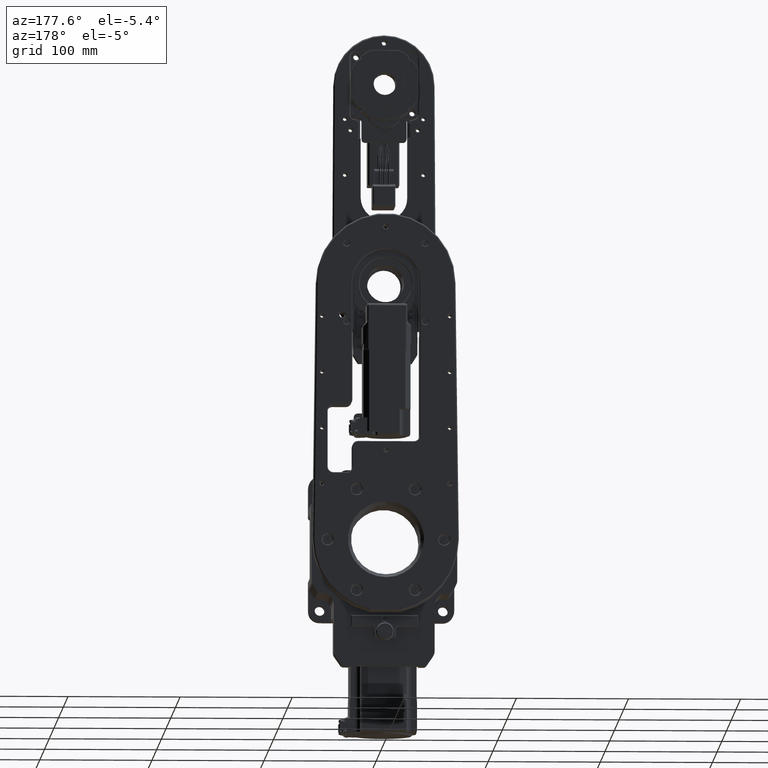
[diagram: clean part render]
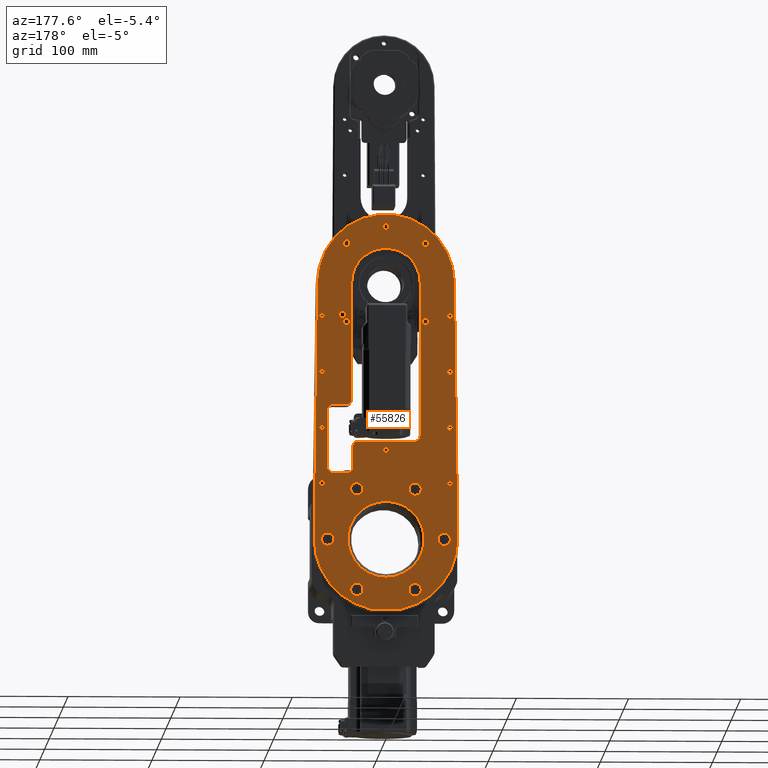
[diagram: same view with one face highlighted and labeled with its STEP entity id]
A machine part, auxiliary view. The second image highlights one B-rep face of the part: STEP entity #55826.
In plain terms, the highlighted planar face has unit normal (0, 1, -0).
Its self-contained STEP definition (entity closure, byte-faithful):
#12 = DIRECTION ( 'NONE',  ( -1.428298247106164424E-15, -1.000000000000000000, 1.323339650661262444E-15 ) ) ;
#39 = EDGE_CURVE ( 'NONE', #88887, #27666, #52071, .T. ) ;
#62 = ORIENTED_EDGE ( 'NONE', *, *, #49863, .T. ) ;
#98 = AXIS2_PLACEMENT_3D ( 'NONE', #82440, #25560, #9915 ) ;
#245 = CARTESIAN_POINT ( 'NONE',  ( 57.00000000000763833, 111.0000000000005116, 200.0000000000000568 ) ) ;
#573 = CARTESIAN_POINT ( 'NONE',  ( -34.99999999999236877, 111.0000000000006395, 198.0000000000001137 ) ) ;
#593 = CARTESIAN_POINT ( 'NONE',  ( 47.00000000000760991, 111.0000000000004121, 115.0000000000000426 ) ) ;
#665 = AXIS2_PLACEMENT_3D ( 'NONE', #64966, #64497, #93837 ) ;
#1059 = VERTEX_POINT ( 'NONE', #33516 ) ;
#1172 = DIRECTION ( 'NONE',  ( -1.428298247106164424E-15, -1.000000000000000000, 1.323339650661262444E-15 ) ) ;
#1428 = EDGE_CURVE ( 'NONE', #26626, #22716, #38652, .T. ) ;
#1591 = CIRCLE ( 'NONE', #37987, 2.150000000000040767 ) ;
#1637 = DIRECTION ( 'NONE',  ( 0.0000000000000000000, 0.0000000000000000000, 1.000000000000000000 ) ) ;
#1722 = CARTESIAN_POINT ( 'NONE',  ( 35.00000000000765965, 111.0000000000003553, 59.50000000000004974 ) ) ;
#1726 = CARTESIAN_POINT ( 'NONE',  ( -56.99999999999237588, 111.0000000000006111, 150.0000000000000568 ) ) ;
#2182 = CIRCLE ( 'NONE', #93028, 2.150000000000040767 ) ;
#2386 = AXIS2_PLACEMENT_3D ( 'NONE', #3815, #74479, #9051 ) ;
#2568 = CARTESIAN_POINT ( 'NONE',  ( -13.88344337690723762, 111.0000000000002700, -62.49999999999997158 ) ) ;
#3109 = EDGE_CURVE ( 'NONE', #32914, #31298, #16587, .T. ) ;
#3367 = EDGE_CURVE ( 'NONE', #22641, #29342, #63528, .T. ) ;
#3504 = FACE_BOUND ( 'NONE', #56203, .T. ) ;
#3815 = CARTESIAN_POINT ( 'NONE',  ( -56.99999999999239009, 111.0000000000006821, 200.0000000000000568 ) ) ;
#3828 = EDGE_LOOP ( 'NONE', ( #70593, #92008 ) ) ;
#4392 = CARTESIAN_POINT ( 'NONE',  ( -25.99999999999235456, 111.0000000000004405, 50.53332099679082745 ) ) ;
#4449 = FACE_BOUND ( 'NONE', #83873, .T. ) ;
#4570 = DIRECTION ( 'NONE',  ( -1.428298247106164424E-15, -1.000000000000000000, 1.323339650661262444E-15 ) ) ;
#4783 = VECTOR ( 'NONE', #46354, 1000.000000000000000 ) ;
#4889 = FACE_BOUND ( 'NONE', #12372, .T. ) ;
#4906 = CIRCLE ( 'NONE', #57894, 33.99999999999997868 ) ;
#5119 = AXIS2_PLACEMENT_3D ( 'NONE', #39706, #80992, #67240 ) ;
#5346 = CARTESIAN_POINT ( 'NONE',  ( 57.00000000000765255, 111.0000000000003268, 50.00000000000000711 ) ) ;
#5411 = EDGE_CURVE ( 'NONE', #34400, #75726, #9807, .T. ) ;
#5441 = CIRCLE ( 'NONE', #2386, 2.150000000000040767 ) ;
#5478 = DIRECTION ( 'NONE',  ( 0.0000000000000000000, 2.523234146875353335E-15, 1.000000000000000000 ) ) ;
#5652 = CIRCLE ( 'NONE', #55573, 60.99999999999994316 ) ;
#5842 = DIRECTION ( 'NONE',  ( 0.0000000000000000000, 2.523234146875353335E-15, 1.000000000000000000 ) ) ;
#6456 = DIRECTION ( 'NONE',  ( 0.0000000000000000000, 0.0000000000000000000, 1.000000000000000000 ) ) ;
#6732 = AXIS2_PLACEMENT_3D ( 'NONE', #9096, #10492, #31841 ) ;
#6809 = CARTESIAN_POINT ( 'NONE',  ( 26.00000000000766320, 111.0000000000003411, 39.53332099679081324 ) ) ;
#6973 = CARTESIAN_POINT ( 'NONE',  ( 26.00000000000766320, 111.0000000000003553, 45.03332099679081324 ) ) ;
#7085 = CIRCLE ( 'NONE', #85771, 5.500000000000005329 ) ;
#7091 = DIRECTION ( 'NONE',  ( -1.110223024625299768E-16, 0.0000000000000000000, 1.000000000000000000 ) ) ;
#7172 = CARTESIAN_POINT ( 'NONE',  ( 57.00000000000764544, 111.0000000000003695, 100.0000000000000284 ) ) ;
#7454 = AXIS2_PLACEMENT_3D ( 'NONE', #56701, #85609, #93164 ) ;
#7622 = CARTESIAN_POINT ( 'NONE',  ( 7.646781800377124168E-12, 111.0000000000003695, 33.99999999999997868 ) ) ;
#7650 = ORIENTED_EDGE ( 'NONE', *, *, #57062, .T. ) ;
#7682 = DIRECTION ( 'NONE',  ( -1.428298247106164424E-15, -1.000000000000000000, 1.323339650661262444E-15 ) ) ;
#8041 = LINE ( 'NONE', #36992, #46827 ) ;
#8397 = CARTESIAN_POINT ( 'NONE',  ( -61.00008505530207970, 111.0000000000007248, 229.9869576311562867 ) ) ;
#8878 = ORIENTED_EDGE ( 'NONE', *, *, #65735, .T. ) ;
#8902 = ORIENTED_EDGE ( 'NONE', *, *, #26357, .T. ) ;
#9051 = DIRECTION ( 'NONE',  ( 0.0000000000000000000, 0.0000000000000000000, 1.000000000000000000 ) ) ;
#9096 = CARTESIAN_POINT ( 'NONE',  ( 57.00000000000763833, 111.0000000000004405, 150.0000000000000568 ) ) ;
#9175 = ORIENTED_EDGE ( 'NONE', *, *, #48415, .T. ) ;
#9231 = CIRCLE ( 'NONE', #62197, 5.500000000000005329 ) ;
#9734 = EDGE_CURVE ( 'NONE', #74773, #59974, #28415, .T. ) ;
#9754 = CIRCLE ( 'NONE', #665, 2.500000000000002220 ) ;
#9807 = LINE ( 'NONE', #8397, #73255 ) ;
#9915 = DIRECTION ( 'NONE',  ( 7.771561172375951816E-16, 1.365028308965355206E-15, 1.000000000000000000 ) ) ;
#10030 = ORIENTED_EDGE ( 'NONE', *, *, #65077, .T. ) ;
#10492 = DIRECTION ( 'NONE',  ( -1.428298247106164424E-15, -1.000000000000000000, 1.323339650661262444E-15 ) ) ;
#10514 = DIRECTION ( 'NONE',  ( -1.428298247106164424E-15, -1.000000000000000000, 1.323339650661262444E-15 ) ) ;
#10521 = DIRECTION ( 'NONE',  ( 0.0000000000000000000, 2.523234146875353335E-15, 1.000000000000000000 ) ) ;
#10547 = EDGE_CURVE ( 'NONE', #29381, #52165, #84492, .T. ) ;
#10878 = VECTOR ( 'NONE', #61568, 1000.000000000000114 ) ;
#11095 = EDGE_CURVE ( 'NONE', #58073, #28155, #11907, .T. ) ;
#11100 = CARTESIAN_POINT ( 'NONE',  ( 52.50000000000761702, 111.0000000000003979, 115.0000000000000426 ) ) ;
#11105 = AXIS2_PLACEMENT_3D ( 'NONE', #24367, #74612, #45250 ) ;
#11263 = EDGE_LOOP ( 'NONE', ( #20481, #80806 ) ) ;
#11432 = EDGE_CURVE ( 'NONE', #52955, #59724, #40796, .T. ) ;
#11549 = AXIS2_PLACEMENT_3D ( 'NONE', #27004, #19879, #48806 ) ;
#11907 = CIRCLE ( 'NONE', #24014, 2.150000000000040767 ) ;
#11923 = CIRCLE ( 'NONE', #60337, 5.500000000000005329 ) ;
#12032 = AXIS2_PLACEMENT_3D ( 'NONE', #53104, #68746, #24665 ) ;
#12285 = VERTEX_POINT ( 'NONE', #573 ) ;
#12370 = CARTESIAN_POINT ( 'NONE',  ( -25.99999999999235456, 111.0000000000004121, 39.53332099679082745 ) ) ;
#12372 = EDGE_LOOP ( 'NONE', ( #90847, #70099 ) ) ;
#12489 = FACE_OUTER_BOUND ( 'NONE', #57164, .T. ) ;
#12502 = CARTESIAN_POINT ( 'NONE',  ( 7.650556558660849701E-12, 111.0000000000003411, -2.681236349580088183E-15 ) ) ;
#12660 = ORIENTED_EDGE ( 'NONE', *, *, #86713, .T. ) ;
#12683 = DIRECTION ( 'NONE',  ( -1.428298247106164424E-15, -1.000000000000000000, 1.323339650661262444E-15 ) ) ;
#13077 = CARTESIAN_POINT ( 'NONE',  ( 7.658495116061677490E-12, 111.0000000000002984, -33.99999999999998579 ) ) ;
#13210 = DIRECTION ( 'NONE',  ( 0.0000000000000000000, 0.0000000000000000000, 1.000000000000000000 ) ) ;
#13421 = CARTESIAN_POINT ( 'NONE',  ( -56.99999999999238298, 111.0000000000005400, 100.0000000000000284 ) ) ;
#13558 = EDGE_LOOP ( 'NONE', ( #21603, #34407 ) ) ;
#13592 = CARTESIAN_POINT ( 'NONE',  ( -34.99999999999236877, 111.0000000000006395, 195.0000000000001137 ) ) ;
#13747 = DIRECTION ( 'NONE',  ( -1.428298247106164424E-15, -1.000000000000000000, 1.323339650661262444E-15 ) ) ;
#13808 = VERTEX_POINT ( 'NONE', #44668 ) ;
#14006 = VERTEX_POINT ( 'NONE', #78104 ) ;
#14228 = DIRECTION ( 'NONE',  ( -1.428298247106164424E-15, -1.000000000000000000, 1.323339650661262444E-15 ) ) ;
#14605 = CARTESIAN_POINT ( 'NONE',  ( -34.99999999999236877, 111.0000000000006395, 195.0000000000001137 ) ) ;
#14837 = ORIENTED_EDGE ( 'NONE', *, *, #36545, .T. ) ;
#15262 = CARTESIAN_POINT ( 'NONE',  ( 57.00000000000764544, 111.0000000000003695, 97.84999999999999432 ) ) ;
#15760 = VERTEX_POINT ( 'NONE', #42058 ) ;
#15820 = CIRCLE ( 'NONE', #30986, 5.500000000000005329 ) ;
#16143 = CIRCLE ( 'NONE', #90256, 5.500000000000005329 ) ;
#16172 = ORIENTED_EDGE ( 'NONE', *, *, #57633, .T. ) ;
#16305 = EDGE_LOOP ( 'NONE', ( #16448, #83505 ) ) ;
#16314 = ORIENTED_EDGE ( 'NONE', *, *, #86107, .T. ) ;
#16448 = ORIENTED_EDGE ( 'NONE', *, *, #92050, .T. ) ;
#16587 = LINE ( 'NONE', #36546, #27145 ) ;
#16796 = VERTEX_POINT ( 'NONE', #72652 ) ;
#16963 = DIRECTION ( 'NONE',  ( -1.428298247106164424E-15, -1.000000000000000000, 1.323339650661262444E-15 ) ) ;
#17166 = ORIENTED_EDGE ( 'NONE', *, *, #51974, .T. ) ;
#17185 = EDGE_CURVE ( 'NONE', #27666, #88887, #9754, .T. ) ;
#17401 = DIRECTION ( 'NONE',  ( -1.428298247106164424E-15, -1.000000000000000000, 1.323339650661262444E-15 ) ) ;
#17480 = EDGE_LOOP ( 'NONE', ( #28353, #77357 ) ) ;
#17544 = VERTEX_POINT ( 'NONE', #84316 ) ;
#17657 = CARTESIAN_POINT ( 'NONE',  ( 7.620054031427286993E-12, 111.0000000000007105, 277.5000000000000568 ) ) ;
#17748 = FACE_BOUND ( 'NONE', #55821, .T. ) ;
#17780 = CARTESIAN_POINT ( 'NONE',  ( 7.621635248869364373E-12, 111.0000000000006821, 260.5000000000001137 ) ) ;
#17821 = EDGE_CURVE ( 'NONE', #23516, #74676, #19800, .T. ) ;
#17923 = CIRCLE ( 'NONE', #17987, 5.500000000000005329 ) ;
#17926 = DIRECTION ( 'NONE',  ( 0.0000000000000000000, 2.523234146875353335E-15, 1.000000000000000000 ) ) ;
#17987 = AXIS2_PLACEMENT_3D ( 'NONE', #21234, #50142, #55843 ) ;
#18037 = EDGE_CURVE ( 'NONE', #50960, #27706, #91273, .T. ) ;
#18039 = DIRECTION ( 'NONE',  ( -1.428298247106164424E-15, -1.000000000000000000, 1.323339650661262444E-15 ) ) ;
#18116 = LINE ( 'NONE', #40858, #48162 ) ;
#18159 = ORIENTED_EDGE ( 'NONE', *, *, #35670, .T. ) ;
#18292 = DIRECTION ( 'NONE',  ( -1.428298247106164424E-15, -1.000000000000000000, 1.323339650661262444E-15 ) ) ;
#18359 = ORIENTED_EDGE ( 'NONE', *, *, #81489, .T. ) ;
#18597 = CARTESIAN_POINT ( 'NONE',  ( 57.00000000000763833, 111.0000000000005116, 200.0000000000000568 ) ) ;
#18681 = FACE_BOUND ( 'NONE', #17480, .T. ) ;
#18705 = VERTEX_POINT ( 'NONE', #41213 ) ;
#18774 = AXIS2_PLACEMENT_3D ( 'NONE', #36760, #23479, #81276 ) ;
#18827 = DIRECTION ( 'NONE',  ( 2.331859275313049513E-16, -1.323339650661263035E-15, -1.000000000000000000 ) ) ;
#18855 = DIRECTION ( 'NONE',  ( -1.428298247106164424E-15, -1.000000000000000000, 1.323339650661262444E-15 ) ) ;
#19007 = EDGE_CURVE ( 'NONE', #38836, #13808, #30724, .T. ) ;
#19397 = EDGE_CURVE ( 'NONE', #28155, #58073, #76771, .T. ) ;
#19515 = CARTESIAN_POINT ( 'NONE',  ( -56.99999999999237588, 111.0000000000004832, 49.99999999999999289 ) ) ;
#19593 = FACE_BOUND ( 'NONE', #63687, .T. ) ;
#19800 = CIRCLE ( 'NONE', #72785, 3.000000000000002665 ) ;
#19802 = ORIENTED_EDGE ( 'NONE', *, *, #10547, .T. ) ;
#19879 = DIRECTION ( 'NONE',  ( 1.428298247106164424E-15, 1.000000000000000000, -1.323339650661262444E-15 ) ) ;
#19978 = DIRECTION ( 'NONE',  ( 4.625929269271517684E-18, 1.323339650661262444E-15, 1.000000000000000000 ) ) ;
#20151 = CARTESIAN_POINT ( 'NONE',  ( 60.99999965423374704, 111.0000000000005400, 229.9935050475663729 ) ) ;
#20237 = ORIENTED_EDGE ( 'NONE', *, *, #22576, .T. ) ;
#20452 = CARTESIAN_POINT ( 'NONE',  ( 35.00000000000765255, 111.0000000000005400, 195.0000000000000568 ) ) ;
#20481 = ORIENTED_EDGE ( 'NONE', *, *, #23004, .T. ) ;
#20658 = AXIS2_PLACEMENT_3D ( 'NONE', #20452, #78280, #43685 ) ;
#20761 = AXIS2_PLACEMENT_3D ( 'NONE', #86981, #1172, #1637 ) ;
#20841 = AXIS2_PLACEMENT_3D ( 'NONE', #35724, #78373, #5842 ) ;
#20953 = VERTEX_POINT ( 'NONE', #50336 ) ;
#21049 = CARTESIAN_POINT ( 'NONE',  ( -56.99999999999239009, 111.0000000000006821, 200.0000000000000568 ) ) ;
#21151 = EDGE_CURVE ( 'NONE', #75726, #36853, #5652, .T. ) ;
#21234 = CARTESIAN_POINT ( 'NONE',  ( 26.00000000000767386, 111.0000000000002416, -45.03332099679083456 ) ) ;
#21247 = DIRECTION ( 'NONE',  ( -1.428298247106164424E-15, -1.000000000000000000, 1.323339650661262444E-15 ) ) ;
#21315 = VECTOR ( 'NONE', #66630, 1000.000000000000000 ) ;
#21603 = ORIENTED_EDGE ( 'NONE', *, *, #53842, .T. ) ;
#21667 = ORIENTED_EDGE ( 'NONE', *, *, #33908, .T. ) ;
#21875 = DIRECTION ( 'NONE',  ( 0.0000000000000000000, 0.0000000000000000000, 1.000000000000000000 ) ) ;
#21902 = ORIENTED_EDGE ( 'NONE', *, *, #3109, .T. ) ;
#21995 = VERTEX_POINT ( 'NONE', #7622 ) ;
#22576 = EDGE_CURVE ( 'NONE', #29342, #22641, #33172, .T. ) ;
#22641 = VERTEX_POINT ( 'NONE', #24544 ) ;
#22670 = AXIS2_PLACEMENT_3D ( 'NONE', #52450, #87051, #74269 ) ;
#22716 = VERTEX_POINT ( 'NONE', #70944 ) ;
#23004 = EDGE_CURVE ( 'NONE', #21995, #49287, #4906, .T. ) ;
#23479 = DIRECTION ( 'NONE',  ( -1.428298247106164424E-15, -1.000000000000000000, 1.323339650661262444E-15 ) ) ;
#23516 = VERTEX_POINT ( 'NONE', #49748 ) ;
#23773 = CARTESIAN_POINT ( 'NONE',  ( 7.625021429094471100E-12, 111.0000000000006395, 230.0000000000000853 ) ) ;
#23938 = FACE_BOUND ( 'NONE', #3828, .T. ) ;
#24014 = AXIS2_PLACEMENT_3D ( 'NONE', #18597, #24311, #40402 ) ;
#24289 = EDGE_LOOP ( 'NONE', ( #80856, #56564 ) ) ;
#24311 = DIRECTION ( 'NONE',  ( -1.428298247106164424E-15, -1.000000000000000000, 1.323339650661262444E-15 ) ) ;
#24367 = CARTESIAN_POINT ( 'NONE',  ( -34.99999999999237588, 111.0000000000007390, 265.0000000000000568 ) ) ;
#24434 = ORIENTED_EDGE ( 'NONE', *, *, #74589, .T. ) ;
#24544 = CARTESIAN_POINT ( 'NONE',  ( 39.00000000000764544, 111.0000000000005400, 204.0000000000001421 ) ) ;
#24665 = DIRECTION ( 'NONE',  ( 0.0000000000000000000, 0.0000000000000000000, 1.000000000000000000 ) ) ;
#24708 = CARTESIAN_POINT ( 'NONE',  ( 30.50000000000765965, 111.0000000000004547, 125.0000000000000853 ) ) ;
#24860 = AXIS2_PLACEMENT_3D ( 'NONE', #41551, #57597, #34888 ) ;
#25005 = CARTESIAN_POINT ( 'NONE',  ( 7.789203228563357778E-12, 111.0000000000004832, 120.5000000000001279 ) ) ;
#25302 = CARTESIAN_POINT ( 'NONE',  ( 26.00000000000767386, 111.0000000000002416, -45.03332099679083456 ) ) ;
#25494 = DIRECTION ( 'NONE',  ( 0.0000000000000000000, 0.0000000000000000000, 1.000000000000000000 ) ) ;
#25560 = DIRECTION ( 'NONE',  ( -1.428298247106164424E-15, -1.000000000000000000, 1.323339650661262444E-15 ) ) ;
#25803 = FACE_BOUND ( 'NONE', #46202, .T. ) ;
#26357 = EDGE_CURVE ( 'NONE', #1059, #82468, #37734, .T. ) ;
#26626 = VERTEX_POINT ( 'NONE', #90686 ) ;
#26812 = CIRCLE ( 'NONE', #78254, 63.99999999999998579 ) ;
#26825 = CARTESIAN_POINT ( 'NONE',  ( 52.00000000000766676, 111.0000000000002700, 3.091923378470725039E-15 ) ) ;
#26826 = AXIS2_PLACEMENT_3D ( 'NONE', #245, #67094, #45767 ) ;
#27004 = CARTESIAN_POINT ( 'NONE',  ( 25.00000000000766320, 111.0000000000003979, 83.00000000000008527 ) ) ;
#27145 = VECTOR ( 'NONE', #50752, 1000.000000000000000 ) ;
#27444 = DIRECTION ( 'NONE',  ( 1.000000000000000000, -1.428298247106165607E-15, -1.150594770975165747E-15 ) ) ;
#27666 = VERTEX_POINT ( 'NONE', #60965 ) ;
#27706 = VERTEX_POINT ( 'NONE', #38752 ) ;
#27719 = CARTESIAN_POINT ( 'NONE',  ( 57.00000000000763833, 111.0000000000004405, 147.8500000000000227 ) ) ;
#27797 = EDGE_CURVE ( 'NONE', #38973, #29418, #71261, .T. ) ;
#28023 = AXIS2_PLACEMENT_3D ( 'NONE', #7172, #88177, #21875 ) ;
#28026 = CARTESIAN_POINT ( 'NONE',  ( -63.99999967030152703, 111.0000000000004121, -0.006496185468624197414 ) ) ;
#28155 = VERTEX_POINT ( 'NONE', #87445 ) ;
#28189 = CIRCLE ( 'NONE', #11549, 4.500000000000003553 ) ;
#28279 = CARTESIAN_POINT ( 'NONE',  ( 57.00000000000763833, 111.0000000000005116, 202.1500000000001194 ) ) ;
#28353 = ORIENTED_EDGE ( 'NONE', *, *, #75978, .T. ) ;
#28415 = CIRCLE ( 'NONE', #20841, 5.500000000000005329 ) ;
#28705 = DIRECTION ( 'NONE',  ( 0.0000000000000000000, 0.0000000000000000000, 1.000000000000000000 ) ) ;
#29332 = CARTESIAN_POINT ( 'NONE',  ( -56.99999999999239009, 111.0000000000006821, 197.8500000000000227 ) ) ;
#29342 = VERTEX_POINT ( 'NONE', #88852 ) ;
#29381 = VERTEX_POINT ( 'NONE', #38656 ) ;
#29418 = VERTEX_POINT ( 'NONE', #91641 ) ;
#29940 = DIRECTION ( 'NONE',  ( 1.428298247106164424E-15, 1.000000000000000000, -1.323339650661262444E-15 ) ) ;
#29957 = VERTEX_POINT ( 'NONE', #62661 ) ;
#30297 = CARTESIAN_POINT ( 'NONE',  ( -25.99999999999237943, 111.0000000000002984, -50.53332099679081324 ) ) ;
#30724 = LINE ( 'NONE', #25005, #4783 ) ;
#30986 = AXIS2_PLACEMENT_3D ( 'NONE', #6973, #56746, #73668 ) ;
#31298 = VERTEX_POINT ( 'NONE', #91103 ) ;
#31364 = CIRCLE ( 'NONE', #35900, 30.50000000000002842 ) ;
#31396 = CIRCLE ( 'NONE', #49512, 5.500000000000005329 ) ;
#31518 = DIRECTION ( 'NONE',  ( 0.0000000000000000000, 0.0000000000000000000, 1.000000000000000000 ) ) ;
#31631 = ORIENTED_EDGE ( 'NONE', *, *, #1428, .T. ) ;
#31661 = EDGE_LOOP ( 'NONE', ( #83988, #41309 ) ) ;
#31841 = DIRECTION ( 'NONE',  ( 0.0000000000000000000, 0.0000000000000000000, 1.000000000000000000 ) ) ;
#31973 = FACE_BOUND ( 'NONE', #24289, .T. ) ;
#32334 = CARTESIAN_POINT ( 'NONE',  ( -51.99999999999236877, 111.0000000000003979, -2.382863911712076179E-15 ) ) ;
#32421 = PLANE ( 'NONE',  #82811 ) ;
#32790 = AXIS2_PLACEMENT_3D ( 'NONE', #47181, #61823, #54736 ) ;
#32914 = VERTEX_POINT ( 'NONE', #36103 ) ;
#32944 = ORIENTED_EDGE ( 'NONE', *, *, #91582, .T. ) ;
#33172 = CIRCLE ( 'NONE', #92177, 3.000000000000058176 ) ;
#33206 = CARTESIAN_POINT ( 'NONE',  ( 35.00000000000764544, 111.0000000000006253, 265.0000000000000568 ) ) ;
#33361 = DIRECTION ( 'NONE',  ( 1.428298247106164424E-15, 1.000000000000000000, -1.323339650661262444E-15 ) ) ;
#33372 = FACE_BOUND ( 'NONE', #33408, .T. ) ;
#33408 = EDGE_LOOP ( 'NONE', ( #18359, #72981 ) ) ;
#33516 = CARTESIAN_POINT ( 'NONE',  ( 47.00000000000760281, 111.0000000000003553, 59.50000000000004263 ) ) ;
#33870 = VERTEX_POINT ( 'NONE', #11100 ) ;
#33882 = EDGE_LOOP ( 'NONE', ( #10030, #69659 ) ) ;
#33908 = EDGE_CURVE ( 'NONE', #22716, #34400, #26812, .T. ) ;
#33939 = VERTEX_POINT ( 'NONE', #78368 ) ;
#34271 = AXIS2_PLACEMENT_3D ( 'NONE', #21049, #42389, #71294 ) ;
#34371 = CARTESIAN_POINT ( 'NONE',  ( 63.99999967031681791, 111.0000000000002416, -0.006496185465377814217 ) ) ;
#34400 = VERTEX_POINT ( 'NONE', #28026 ) ;
#34407 = ORIENTED_EDGE ( 'NONE', *, *, #55633, .T. ) ;
#34726 = CARTESIAN_POINT ( 'NONE',  ( 7.650556558660849701E-12, 111.0000000000003411, -2.681236349580088183E-15 ) ) ;
#34888 = DIRECTION ( 'NONE',  ( -1.110223024624145812E-16, 0.0000000000000000000, 1.000000000000000000 ) ) ;
#35441 = CIRCLE ( 'NONE', #18774, 33.99999999999997868 ) ;
#35500 = VERTEX_POINT ( 'NONE', #83050 ) ;
#35505 = ORIENTED_EDGE ( 'NONE', *, *, #17185, .T. ) ;
#35530 = EDGE_CURVE ( 'NONE', #85251, #35500, #50849, .T. ) ;
#35656 = AXIS2_PLACEMENT_3D ( 'NONE', #13592, #71407, #6456 ) ;
#35670 = EDGE_CURVE ( 'NONE', #52165, #29381, #46337, .T. ) ;
#35724 = CARTESIAN_POINT ( 'NONE',  ( -25.99999999999235456, 111.0000000000004263, 45.03332099679082745 ) ) ;
#35900 = AXIS2_PLACEMENT_3D ( 'NONE', #93340, #93809, #42687 ) ;
#35965 = DIRECTION ( 'NONE',  ( -1.428298247106164424E-15, -1.000000000000000000, 1.323339650661262444E-15 ) ) ;
#35983 = EDGE_CURVE ( 'NONE', #18705, #32914, #16143, .T. ) ;
#36103 = CARTESIAN_POINT ( 'NONE',  ( -24.99999999999237232, 111.0000000000004832, 87.50000000000014211 ) ) ;
#36244 = VERTEX_POINT ( 'NONE', #15262 ) ;
#36285 = ORIENTED_EDGE ( 'NONE', *, *, #90207, .T. ) ;
#36500 = CARTESIAN_POINT ( 'NONE',  ( 7.641674774463848448E-12, 111.0000000000004263, 80.00000000000002842 ) ) ;
#36545 = EDGE_CURVE ( 'NONE', #89534, #50028, #31364, .T. ) ;
#36546 = CARTESIAN_POINT ( 'NONE',  ( 7.742034309960692790E-12, 111.0000000000004405, 87.50000000000011369 ) ) ;
#36760 = CARTESIAN_POINT ( 'NONE',  ( 7.650556558660849701E-12, 111.0000000000003411, -2.681236349580088183E-15 ) ) ;
#36853 = VERTEX_POINT ( 'NONE', #20151 ) ;
#36885 = CARTESIAN_POINT ( 'NONE',  ( 26.00000000000766320, 111.0000000000003553, 45.03332099679081324 ) ) ;
#36992 = CARTESIAN_POINT ( 'NONE',  ( 29.50000000000767386, 111.0000000000002984, 5.939215730641266685E-16 ) ) ;
#37359 = DIRECTION ( 'NONE',  ( 0.0000000000000000000, 2.523234146875353335E-15, 1.000000000000000000 ) ) ;
#37734 = CIRCLE ( 'NONE', #7454, 5.500000000000005329 ) ;
#37827 = CARTESIAN_POINT ( 'NONE',  ( 35.00000000000764544, 111.0000000000006253, 265.0000000000000568 ) ) ;
#37987 = AXIS2_PLACEMENT_3D ( 'NONE', #41956, #93549, #56618 ) ;
#38537 = CARTESIAN_POINT ( 'NONE',  ( 35.00000000000765255, 111.0000000000005400, 198.0000000000000568 ) ) ;
#38562 = ORIENTED_EDGE ( 'NONE', *, *, #64981, .T. ) ;
#38652 = LINE ( 'NONE', #2568, #21315 ) ;
#38656 = CARTESIAN_POINT ( 'NONE',  ( 35.00000000000765255, 111.0000000000005400, 192.0000000000000568 ) ) ;
#38746 = DIRECTION ( 'NONE',  ( 0.0000000000000000000, 0.0000000000000000000, 1.000000000000000000 ) ) ;
#38752 = CARTESIAN_POINT ( 'NONE',  ( 30.50000000000764544, 111.0000000000005969, 230.0000000000000853 ) ) ;
#38819 = CIRCLE ( 'NONE', #34271, 2.150000000000040767 ) ;
#38836 = VERTEX_POINT ( 'NONE', #91100 ) ;
#38901 = CARTESIAN_POINT ( 'NONE',  ( -25.99999999999235456, 111.0000000000004263, 45.03332099679082745 ) ) ;
#38973 = VERTEX_POINT ( 'NONE', #30297 ) ;
#39521 = CARTESIAN_POINT ( 'NONE',  ( 7.650556558660849701E-12, 111.0000000000003411, -2.681236349580088183E-15 ) ) ;
#39706 = CARTESIAN_POINT ( 'NONE',  ( -56.99999999999238298, 111.0000000000005400, 100.0000000000000284 ) ) ;
#40388 = LINE ( 'NONE', #69298, #52703 ) ;
#40402 = DIRECTION ( 'NONE',  ( 0.0000000000000000000, 0.0000000000000000000, 1.000000000000000000 ) ) ;
#40456 = VECTOR ( 'NONE', #18827, 1000.000000000000000 ) ;
#40529 = VERTEX_POINT ( 'NONE', #50483 ) ;
#40674 = CARTESIAN_POINT ( 'NONE',  ( -51.99999999999236877, 111.0000000000003979, -2.382863911712076179E-15 ) ) ;
#40796 = CIRCLE ( 'NONE', #12032, 2.150000000000040767 ) ;
#40858 = CARTESIAN_POINT ( 'NONE',  ( 52.50000000000760991, 111.0000000000002558, -2.924097636216841965E-15 ) ) ;
#41171 = CARTESIAN_POINT ( 'NONE',  ( -60.99999965421851300, 111.0000000000007248, 229.9935050475632465 ) ) ;
#41213 = CARTESIAN_POINT ( 'NONE',  ( -30.49999999999236167, 111.0000000000004974, 93.00000000000015632 ) ) ;
#41309 = ORIENTED_EDGE ( 'NONE', *, *, #19397, .T. ) ;
#41551 = CARTESIAN_POINT ( 'NONE',  ( 7.619470313971345317E-12, 111.0000000000007105, 280.0000000000000568 ) ) ;
#41612 = CARTESIAN_POINT ( 'NONE',  ( 26.00000000000767386, 111.0000000000002274, -50.53332099679082745 ) ) ;
#41741 = DIRECTION ( 'NONE',  ( -1.428298247106164424E-15, -1.000000000000000000, 1.323339650661262444E-15 ) ) ;
#41883 = AXIS2_PLACEMENT_3D ( 'NONE', #78964, #42472, #28705 ) ;
#41896 = DIRECTION ( 'NONE',  ( 0.0000000000000000000, 2.523234146875353335E-15, 1.000000000000000000 ) ) ;
#41927 = VERTEX_POINT ( 'NONE', #59993 ) ;
#41956 = CARTESIAN_POINT ( 'NONE',  ( 7.641674774463848448E-12, 111.0000000000004263, 80.00000000000002842 ) ) ;
#42058 = CARTESIAN_POINT ( 'NONE',  ( -56.99999999999237588, 111.0000000000006111, 152.1500000000000909 ) ) ;
#42389 = DIRECTION ( 'NONE',  ( -1.428298247106164424E-15, -1.000000000000000000, 1.323339650661262444E-15 ) ) ;
#42412 = EDGE_LOOP ( 'NONE', ( #12660, #77193 ) ) ;
#42472 = DIRECTION ( 'NONE',  ( -1.428298247106164424E-15, -1.000000000000000000, 1.323339650661262444E-15 ) ) ;
#42529 = VERTEX_POINT ( 'NONE', #78694 ) ;
#42687 = DIRECTION ( 'NONE',  ( -1.110223024625283744E-16, 1.365028308965355206E-15, 1.000000000000000000 ) ) ;
#42890 = ORIENTED_EDGE ( 'NONE', *, *, #19007, .T. ) ;
#43417 = EDGE_CURVE ( 'NONE', #59102, #42529, #59636, .T. ) ;
#43685 = DIRECTION ( 'NONE',  ( 0.0000000000000000000, 0.0000000000000000000, 1.000000000000000000 ) ) ;
#44090 = DIRECTION ( 'NONE',  ( 0.0000000000000000000, 2.523234146875353335E-15, 1.000000000000000000 ) ) ;
#44124 = VERTEX_POINT ( 'NONE', #58674 ) ;
#44314 = EDGE_CURVE ( 'NONE', #41927, #12285, #58297, .T. ) ;
#44668 = CARTESIAN_POINT ( 'NONE',  ( 35.00000000000764544, 111.0000000000004405, 120.5000000000000853 ) ) ;
#44706 = ORIENTED_EDGE ( 'NONE', *, *, #87350, .T. ) ;
#44726 = DIRECTION ( 'NONE',  ( -3.784851220313030003E-15, 2.523234146875353335E-15, 1.000000000000000000 ) ) ;
#44855 = DIRECTION ( 'NONE',  ( -1.110223024625354002E-16, 1.224510688924805785E-15, 1.000000000000000000 ) ) ;
#45056 = ORIENTED_EDGE ( 'NONE', *, *, #9734, .T. ) ;
#45211 = AXIS2_PLACEMENT_3D ( 'NONE', #57283, #35965, #31518 ) ;
#45250 = DIRECTION ( 'NONE',  ( 0.0000000000000000000, 0.0000000000000000000, 1.000000000000000000 ) ) ;
#45564 = DIRECTION ( 'NONE',  ( 0.0000000000000000000, 2.523234146875353335E-15, 1.000000000000000000 ) ) ;
#45567 = CARTESIAN_POINT ( 'NONE',  ( 52.00000000000766676, 111.0000000000002558, -5.499999999999996447 ) ) ;
#45621 = ORIENTED_EDGE ( 'NONE', *, *, #3367, .T. ) ;
#45767 = DIRECTION ( 'NONE',  ( 0.0000000000000000000, 0.0000000000000000000, 1.000000000000000000 ) ) ;
#45901 = AXIS2_PLACEMENT_3D ( 'NONE', #48991, #77904, #41896 ) ;
#46202 = EDGE_LOOP ( 'NONE', ( #18159, #19802 ) ) ;
#46337 = CIRCLE ( 'NONE', #20658, 3.000000000000002665 ) ;
#46354 = DIRECTION ( 'NONE',  ( -1.000000000000000000, 1.428298247106165607E-15, 1.150594770975165352E-15 ) ) ;
#46682 = FACE_BOUND ( 'NONE', #78607, .T. ) ;
#46827 = VECTOR ( 'NONE', #65893, 1000.000000000000000 ) ;
#47048 = DIRECTION ( 'NONE',  ( -1.428298247106164424E-15, -1.000000000000000000, 1.323339650661262444E-15 ) ) ;
#47096 = VERTEX_POINT ( 'NONE', #86870 ) ;
#47151 = ORIENTED_EDGE ( 'NONE', *, *, #39, .T. ) ;
#47181 = CARTESIAN_POINT ( 'NONE',  ( 35.00000000000765255, 111.0000000000004405, 125.0000000000000853 ) ) ;
#47382 = EDGE_CURVE ( 'NONE', #82468, #33870, #18116, .T. ) ;
#47621 = FACE_BOUND ( 'NONE', #57343, .T. ) ;
#48162 = VECTOR ( 'NONE', #19978, 1000.000000000000000 ) ;
#48415 = EDGE_CURVE ( 'NONE', #29957, #61451, #8041, .T. ) ;
#48806 = DIRECTION ( 'NONE',  ( 0.0000000000000000000, 0.0000000000000000000, 1.000000000000000000 ) ) ;
#48991 = CARTESIAN_POINT ( 'NONE',  ( 35.00000000000766676, 111.0000000000003553, 65.00000000000007105 ) ) ;
#49287 = VERTEX_POINT ( 'NONE', #13077 ) ;
#49356 = CARTESIAN_POINT ( 'NONE',  ( -25.99999999999237943, 111.0000000000003126, -45.03332099679082035 ) ) ;
#49512 = AXIS2_PLACEMENT_3D ( 'NONE', #40674, #12683, #17926 ) ;
#49602 = ORIENTED_EDGE ( 'NONE', *, *, #47382, .T. ) ;
#49748 = CARTESIAN_POINT ( 'NONE',  ( 35.00000000000764544, 111.0000000000006253, 262.0000000000000568 ) ) ;
#49863 = EDGE_CURVE ( 'NONE', #74676, #23516, #62129, .T. ) ;
#50028 = VERTEX_POINT ( 'NONE', #75640 ) ;
#50142 = DIRECTION ( 'NONE',  ( -1.428298247106164424E-15, -1.000000000000000000, 1.323339650661262444E-15 ) ) ;
#50336 = CARTESIAN_POINT ( 'NONE',  ( 57.00000000000764544, 111.0000000000003695, 102.1500000000000767 ) ) ;
#50483 = CARTESIAN_POINT ( 'NONE',  ( -56.99999999999237588, 111.0000000000004832, 47.84999999999995168 ) ) ;
#50752 = DIRECTION ( 'NONE',  ( 1.000000000000000000, -1.428298247106165607E-15, -1.045460014855355479E-15 ) ) ;
#50849 = CIRCLE ( 'NONE', #93166, 5.500000000000005329 ) ;
#50960 = VERTEX_POINT ( 'NONE', #24708 ) ;
#51678 = AXIS2_PLACEMENT_3D ( 'NONE', #19515, #10514, #83980 ) ;
#51933 = CARTESIAN_POINT ( 'NONE',  ( 57.00000000000763833, 111.0000000000004405, 152.1500000000000909 ) ) ;
#51974 = EDGE_CURVE ( 'NONE', #61451, #68797, #77669, .T. ) ;
#52071 = CIRCLE ( 'NONE', #24860, 2.500000000000002220 ) ;
#52087 = EDGE_CURVE ( 'NONE', #33870, #38836, #57961, .T. ) ;
#52165 = VERTEX_POINT ( 'NONE', #38537 ) ;
#52450 = CARTESIAN_POINT ( 'NONE',  ( 39.00000000000764544, 111.0000000000005400, 201.0000000000000853 ) ) ;
#52703 = VECTOR ( 'NONE', #27444, 1000.000000000000000 ) ;
#52845 = FACE_BOUND ( 'NONE', #52885, .T. ) ;
#52872 = CARTESIAN_POINT ( 'NONE',  ( 7.650556558660849701E-12, 111.0000000000003411, -2.681236349580088183E-15 ) ) ;
#52885 = EDGE_LOOP ( 'NONE', ( #36285, #45056 ) ) ;
#52941 = DIRECTION ( 'NONE',  ( 0.01304236884378606916, 1.304598701039703661E-15, 0.9999149446902685368 ) ) ;
#52949 = DIRECTION ( 'NONE',  ( -1.428298247106164424E-15, -1.000000000000000000, 1.323339650661262444E-15 ) ) ;
#52955 = VERTEX_POINT ( 'NONE', #51933 ) ;
#52983 = VERTEX_POINT ( 'NONE', #80850 ) ;
#52985 = CARTESIAN_POINT ( 'NONE',  ( 39.00000000000764544, 111.0000000000005400, 201.0000000000000853 ) ) ;
#53104 = CARTESIAN_POINT ( 'NONE',  ( 57.00000000000763833, 111.0000000000004405, 150.0000000000000568 ) ) ;
#53595 = AXIS2_PLACEMENT_3D ( 'NONE', #13421, #7682, #64582 ) ;
#53695 = EDGE_LOOP ( 'NONE', ( #81270, #44706 ) ) ;
#53780 = FACE_BOUND ( 'NONE', #91754, .T. ) ;
#53842 = EDGE_CURVE ( 'NONE', #20953, #36244, #70357, .T. ) ;
#54190 = DIRECTION ( 'NONE',  ( -1.428298247106164424E-15, -1.000000000000000000, 1.323339650661262444E-15 ) ) ;
#54242 = FACE_BOUND ( 'NONE', #33882, .T. ) ;
#54511 = EDGE_CURVE ( 'NONE', #16796, #15760, #93129, .T. ) ;
#54736 = DIRECTION ( 'NONE',  ( 0.0000000000000000000, 0.0000000000000000000, 1.000000000000000000 ) ) ;
#54849 = LINE ( 'NONE', #69078, #40456 ) ;
#55287 = DIRECTION ( 'NONE',  ( 0.0000000000000000000, 2.523234146875353335E-15, 1.000000000000000000 ) ) ;
#55496 = EDGE_CURVE ( 'NONE', #40529, #65705, #82741, .T. ) ;
#55571 = DIRECTION ( 'NONE',  ( -1.110223024625034514E-16, 1.301042606982605518E-15, 1.000000000000000000 ) ) ;
#55573 = AXIS2_PLACEMENT_3D ( 'NONE', #23773, #29940, #67836 ) ;
#55633 = EDGE_CURVE ( 'NONE', #36244, #20953, #79772, .T. ) ;
#55821 = EDGE_LOOP ( 'NONE', ( #62, #90009 ) ) ;
#55826 = ADVANCED_FACE ( 'NONE', ( #61790, #53780, #17748, #25803, #61326, #31973, #90703, #83617, #23938, #46682, #18681, #3504, #54242, #47621, #69401, #4449, #33372, #62259, #52845, #4889, #19593, #77412, #60830, #12489 ), #32421, .T. ) ;
#55843 = DIRECTION ( 'NONE',  ( 0.0000000000000000000, 2.523234146875353335E-15, 1.000000000000000000 ) ) ;
#56203 = EDGE_LOOP ( 'NONE', ( #8878, #75416 ) ) ;
#56288 = EDGE_CURVE ( 'NONE', #78674, #33939, #90696, .T. ) ;
#56564 = ORIENTED_EDGE ( 'NONE', *, *, #84280, .T. ) ;
#56618 = DIRECTION ( 'NONE',  ( -1.110223024625299768E-16, 0.0000000000000000000, 1.000000000000000000 ) ) ;
#56701 = CARTESIAN_POINT ( 'NONE',  ( 47.00000000000760991, 111.0000000000003553, 65.00000000000004263 ) ) ;
#56746 = DIRECTION ( 'NONE',  ( -1.428298247106164424E-15, -1.000000000000000000, 1.323339650661262444E-15 ) ) ;
#57062 = EDGE_CURVE ( 'NONE', #44124, #14006, #1591, .T. ) ;
#57164 = EDGE_LOOP ( 'NONE', ( #78565, #71662, #65429, #31631, #21667, #68579 ) ) ;
#57283 = CARTESIAN_POINT ( 'NONE',  ( 35.00000000000765255, 111.0000000000005400, 195.0000000000000568 ) ) ;
#57343 = EDGE_LOOP ( 'NONE', ( #60160, #58918 ) ) ;
#57597 = DIRECTION ( 'NONE',  ( -1.428298247106164424E-15, -1.000000000000000000, 1.323339650661262444E-15 ) ) ;
#57633 = EDGE_CURVE ( 'NONE', #27706, #89534, #75857, .T. ) ;
#57894 = AXIS2_PLACEMENT_3D ( 'NONE', #52872, #73748, #44855 ) ;
#57961 = CIRCLE ( 'NONE', #62701, 5.500000000000005329 ) ;
#58073 = VERTEX_POINT ( 'NONE', #28279 ) ;
#58114 = CIRCLE ( 'NONE', #53595, 2.150000000000040767 ) ;
#58297 = CIRCLE ( 'NONE', #35656, 3.000000000000002665 ) ;
#58330 = AXIS2_PLACEMENT_3D ( 'NONE', #1726, #89380, #90791 ) ;
#58576 = DIRECTION ( 'NONE',  ( 0.0000000000000000000, 0.0000000000000000000, 1.000000000000000000 ) ) ;
#58674 = CARTESIAN_POINT ( 'NONE',  ( 7.641436076513553070E-12, 111.0000000000004263, 82.15000000000007674 ) ) ;
#58794 = AXIS2_PLACEMENT_3D ( 'NONE', #14605, #21247, #13210 ) ;
#58918 = ORIENTED_EDGE ( 'NONE', *, *, #56288, .T. ) ;
#59102 = VERTEX_POINT ( 'NONE', #41612 ) ;
#59636 = CIRCLE ( 'NONE', #88382, 5.500000000000005329 ) ;
#59724 = VERTEX_POINT ( 'NONE', #27719 ) ;
#59974 = VERTEX_POINT ( 'NONE', #4392 ) ;
#59993 = CARTESIAN_POINT ( 'NONE',  ( -34.99999999999236877, 111.0000000000006395, 192.0000000000001137 ) ) ;
#60160 = ORIENTED_EDGE ( 'NONE', *, *, #74306, .T. ) ;
#60337 = AXIS2_PLACEMENT_3D ( 'NONE', #36885, #52949, #37359 ) ;
#60735 = VERTEX_POINT ( 'NONE', #34371 ) ;
#60762 = CARTESIAN_POINT ( 'NONE',  ( 52.50000000000760991, 111.0000000000003553, 65.00000000000004263 ) ) ;
#60830 = FACE_BOUND ( 'NONE', #11263, .T. ) ;
#60922 = CARTESIAN_POINT ( 'NONE',  ( 52.00000000000766676, 111.0000000000002700, 3.091923378470725039E-15 ) ) ;
#60965 = CARTESIAN_POINT ( 'NONE',  ( 7.619192758215187413E-12, 111.0000000000007105, 282.5000000000000568 ) ) ;
#61294 = DIRECTION ( 'NONE',  ( -1.428298247106164424E-15, -1.000000000000000000, 1.323339650661262444E-15 ) ) ;
#61326 = FACE_BOUND ( 'NONE', #31661, .T. ) ;
#61430 = CARTESIAN_POINT ( 'NONE',  ( -51.99999999999236877, 111.0000000000004121, 5.500000000000009770 ) ) ;
#61451 = VERTEX_POINT ( 'NONE', #67397 ) ;
#61568 = DIRECTION ( 'NONE',  ( 0.01304236884378629467, -1.341855486155087313E-15, -0.9999149446902684257 ) ) ;
#61651 = EDGE_CURVE ( 'NONE', #47096, #76153, #65681, .T. ) ;
#61767 = DIRECTION ( 'NONE',  ( -1.110223024625156294E-16, 1.323339650661262641E-15, 1.000000000000000000 ) ) ;
#61790 = FACE_BOUND ( 'NONE', #90574, .T. ) ;
#61823 = DIRECTION ( 'NONE',  ( 1.428298247106164424E-15, 1.000000000000000000, -1.323339650661262444E-15 ) ) ;
#61977 = ORIENTED_EDGE ( 'NONE', *, *, #43417, .T. ) ;
#62096 = EDGE_CURVE ( 'NONE', #88572, #63898, #15820, .T. ) ;
#62129 = CIRCLE ( 'NONE', #75990, 3.000000000000002665 ) ;
#62197 = AXIS2_PLACEMENT_3D ( 'NONE', #49356, #12, #92924 ) ;
#62222 = DIRECTION ( 'NONE',  ( -1.428298247106164424E-15, -1.000000000000000000, 1.323339650661262444E-15 ) ) ;
#62252 = DIRECTION ( 'NONE',  ( -1.110223024625034514E-16, 1.301042606982605518E-15, 1.000000000000000000 ) ) ;
#62259 = FACE_BOUND ( 'NONE', #53695, .T. ) ;
#62367 = EDGE_CURVE ( 'NONE', #60735, #26626, #67395, .T. ) ;
#62661 = CARTESIAN_POINT ( 'NONE',  ( 29.50000000000766676, 111.0000000000003979, 83.00000000000008527 ) ) ;
#62701 = AXIS2_PLACEMENT_3D ( 'NONE', #593, #65085, #44726 ) ;
#63046 = CIRCLE ( 'NONE', #93338, 2.150000000000040767 ) ;
#63241 = VERTEX_POINT ( 'NONE', #69384 ) ;
#63375 = EDGE_CURVE ( 'NONE', #79188, #81329, #5441, .T. ) ;
#63528 = CIRCLE ( 'NONE', #22670, 3.000000000000058176 ) ;
#63624 = DIRECTION ( 'NONE',  ( 1.428298247106164424E-15, 1.000000000000000000, -1.323339650661262444E-15 ) ) ;
#63687 = EDGE_LOOP ( 'NONE', ( #9175, #17166, #63784, #8902, #49602, #88634, #42890, #38562, #84769, #16172, #14837, #91801, #93614, #21902, #68502 ) ) ;
#63784 = ORIENTED_EDGE ( 'NONE', *, *, #87935, .T. ) ;
#63898 = VERTEX_POINT ( 'NONE', #6809 ) ;
#64206 = CARTESIAN_POINT ( 'NONE',  ( -56.99999999999239009, 111.0000000000006821, 202.1500000000001194 ) ) ;
#64497 = DIRECTION ( 'NONE',  ( -1.428298247106164424E-15, -1.000000000000000000, 1.323339650661262444E-15 ) ) ;
#64582 = DIRECTION ( 'NONE',  ( 0.0000000000000000000, 0.0000000000000000000, 1.000000000000000000 ) ) ;
#64604 = EDGE_CURVE ( 'NONE', #31298, #29957, #28189, .T. ) ;
#64966 = CARTESIAN_POINT ( 'NONE',  ( 7.619470313971345317E-12, 111.0000000000007105, 280.0000000000000568 ) ) ;
#64981 = EDGE_CURVE ( 'NONE', #13808, #50960, #69133, .T. ) ;
#65077 = EDGE_CURVE ( 'NONE', #81329, #79188, #38819, .T. ) ;
#65085 = DIRECTION ( 'NONE',  ( -1.428298247106164424E-15, -1.000000000000000000, 1.323339650661262444E-15 ) ) ;
#65429 = ORIENTED_EDGE ( 'NONE', *, *, #62367, .T. ) ;
#65681 = CIRCLE ( 'NONE', #5119, 2.150000000000040767 ) ;
#65705 = VERTEX_POINT ( 'NONE', #92310 ) ;
#65735 = EDGE_CURVE ( 'NONE', #12285, #41927, #83027, .T. ) ;
#65882 = EDGE_CURVE ( 'NONE', #63898, #88572, #11923, .T. ) ;
#65893 = DIRECTION ( 'NONE',  ( 1.110223024625156294E-16, -1.323339650661262641E-15, -1.000000000000000000 ) ) ;
#65928 = CIRCLE ( 'NONE', #58330, 2.150000000000040767 ) ;
#66501 = EDGE_LOOP ( 'NONE', ( #35505, #47151 ) ) ;
#66630 = DIRECTION ( 'NONE',  ( -1.000000000000000000, 1.428298247106164030E-15, -1.110223024625156294E-16 ) ) ;
#67094 = DIRECTION ( 'NONE',  ( -1.428298247106164424E-15, -1.000000000000000000, 1.323339650661262444E-15 ) ) ;
#67240 = DIRECTION ( 'NONE',  ( 0.0000000000000000000, 0.0000000000000000000, 1.000000000000000000 ) ) ;
#67395 = CIRCLE ( 'NONE', #70335, 63.99999999999998579 ) ;
#67397 = CARTESIAN_POINT ( 'NONE',  ( 29.50000000000766676, 111.0000000000003695, 65.00000000000007105 ) ) ;
#67788 = CARTESIAN_POINT ( 'NONE',  ( 64.00008505531739900, 111.0000000000002416, -0.01304236884377789514 ) ) ;
#67836 = DIRECTION ( 'NONE',  ( -1.110223024625027241E-16, 1.365028308965357770E-15, 1.000000000000000000 ) ) ;
#68502 = ORIENTED_EDGE ( 'NONE', *, *, #64604, .T. ) ;
#68579 = ORIENTED_EDGE ( 'NONE', *, *, #5411, .T. ) ;
#68746 = DIRECTION ( 'NONE',  ( -1.428298247106164424E-15, -1.000000000000000000, 1.323339650661262444E-15 ) ) ;
#68797 = VERTEX_POINT ( 'NONE', #1722 ) ;
#68803 = CIRCLE ( 'NONE', #6732, 2.150000000000040767 ) ;
#69078 = CARTESIAN_POINT ( 'NONE',  ( -30.49999999999234390, 111.0000000000003695, -9.793407139284886979E-15 ) ) ;
#69133 = CIRCLE ( 'NONE', #32790, 4.500000000000003553 ) ;
#69298 = CARTESIAN_POINT ( 'NONE',  ( 7.719016947533872294E-12, 111.0000000000003979, 59.50000000000009237 ) ) ;
#69356 = DIRECTION ( 'NONE',  ( 0.0000000000000000000, 2.523234146875353335E-15, 1.000000000000000000 ) ) ;
#69384 = CARTESIAN_POINT ( 'NONE',  ( 52.00000000000766676, 111.0000000000002842, 5.500000000000015099 ) ) ;
#69401 = FACE_BOUND ( 'NONE', #16305, .T. ) ;
#69531 = VERTEX_POINT ( 'NONE', #45567 ) ;
#69659 = ORIENTED_EDGE ( 'NONE', *, *, #63375, .T. ) ;
#70099 = ORIENTED_EDGE ( 'NONE', *, *, #65882, .T. ) ;
#70335 = AXIS2_PLACEMENT_3D ( 'NONE', #34726, #63624, #55571 ) ;
#70357 = CIRCLE ( 'NONE', #28023, 2.150000000000040767 ) ;
#70593 = ORIENTED_EDGE ( 'NONE', *, *, #81369, .T. ) ;
#70627 = DIRECTION ( 'NONE',  ( 0.0000000000000000000, 0.0000000000000000000, 1.000000000000000000 ) ) ;
#70944 = CARTESIAN_POINT ( 'NONE',  ( -13.77497731394834624, 111.0000000000002700, -62.49999999999997158 ) ) ;
#71261 = CIRCLE ( 'NONE', #72817, 5.500000000000005329 ) ;
#71294 = DIRECTION ( 'NONE',  ( 0.0000000000000000000, 0.0000000000000000000, 1.000000000000000000 ) ) ;
#71295 = CIRCLE ( 'NONE', #51678, 2.150000000000040767 ) ;
#71407 = DIRECTION ( 'NONE',  ( -1.428298247106164424E-15, -1.000000000000000000, 1.323339650661262444E-15 ) ) ;
#71662 = ORIENTED_EDGE ( 'NONE', *, *, #81714, .T. ) ;
#71677 = CIRCLE ( 'NONE', #11105, 3.000000000000002665 ) ;
#72652 = CARTESIAN_POINT ( 'NONE',  ( -56.99999999999237588, 111.0000000000006111, 147.8500000000000227 ) ) ;
#72785 = AXIS2_PLACEMENT_3D ( 'NONE', #37827, #17401, #38746 ) ;
#72817 = AXIS2_PLACEMENT_3D ( 'NONE', #75696, #4570, #55287 ) ;
#72981 = ORIENTED_EDGE ( 'NONE', *, *, #27797, .T. ) ;
#73255 = VECTOR ( 'NONE', #52941, 999.9999999999998863 ) ;
#73462 = CIRCLE ( 'NONE', #87026, 5.500000000000005329 ) ;
#73668 = DIRECTION ( 'NONE',  ( 0.0000000000000000000, 2.523234146875353335E-15, 1.000000000000000000 ) ) ;
#73748 = DIRECTION ( 'NONE',  ( -1.428298247106164424E-15, -1.000000000000000000, 1.323339650661262444E-15 ) ) ;
#74209 = CARTESIAN_POINT ( 'NONE',  ( 26.00000000000766320, 111.0000000000003553, 50.53332099679081324 ) ) ;
#74269 = DIRECTION ( 'NONE',  ( 0.0000000000000000000, 0.0000000000000000000, 1.000000000000000000 ) ) ;
#74306 = EDGE_CURVE ( 'NONE', #33939, #78674, #71677, .T. ) ;
#74479 = DIRECTION ( 'NONE',  ( -1.428298247106164424E-15, -1.000000000000000000, 1.323339650661262444E-15 ) ) ;
#74589 = EDGE_CURVE ( 'NONE', #76153, #47096, #58114, .T. ) ;
#74612 = DIRECTION ( 'NONE',  ( -1.428298247106164424E-15, -1.000000000000000000, 1.323339650661262444E-15 ) ) ;
#74676 = VERTEX_POINT ( 'NONE', #82082 ) ;
#74773 = VERTEX_POINT ( 'NONE', #12370 ) ;
#75416 = ORIENTED_EDGE ( 'NONE', *, *, #44314, .T. ) ;
#75640 = CARTESIAN_POINT ( 'NONE',  ( -30.49999999999239364, 111.0000000000006821, 230.0000000000000853 ) ) ;
#75696 = CARTESIAN_POINT ( 'NONE',  ( -25.99999999999237943, 111.0000000000003126, -45.03332099679082035 ) ) ;
#75726 = VERTEX_POINT ( 'NONE', #41171 ) ;
#75857 = CIRCLE ( 'NONE', #98, 30.50000000000002842 ) ;
#75978 = EDGE_CURVE ( 'NONE', #15760, #16796, #65928, .T. ) ;
#75990 = AXIS2_PLACEMENT_3D ( 'NONE', #33206, #41741, #70627 ) ;
#76153 = VERTEX_POINT ( 'NONE', #85565 ) ;
#76369 = CIRCLE ( 'NONE', #88446, 2.150000000000040767 ) ;
#76771 = CIRCLE ( 'NONE', #26826, 2.150000000000040767 ) ;
#76933 = DIRECTION ( 'NONE',  ( 0.0000000000000000000, 0.0000000000000000000, 1.000000000000000000 ) ) ;
#77193 = ORIENTED_EDGE ( 'NONE', *, *, #86018, .T. ) ;
#77357 = ORIENTED_EDGE ( 'NONE', *, *, #54511, .T. ) ;
#77412 = FACE_BOUND ( 'NONE', #66501, .T. ) ;
#77669 = CIRCLE ( 'NONE', #45901, 5.500000000000005329 ) ;
#77904 = DIRECTION ( 'NONE',  ( -1.428298247106164424E-15, -1.000000000000000000, 1.323339650661262444E-15 ) ) ;
#78025 = CARTESIAN_POINT ( 'NONE',  ( 30.50000000000767741, 111.0000000000002984, 1.666926894022872133E-15 ) ) ;
#78086 = AXIS2_PLACEMENT_3D ( 'NONE', #91782, #18855, #58576 ) ;
#78104 = CARTESIAN_POINT ( 'NONE',  ( 7.642176771475959582E-12, 111.0000000000004263, 77.84999999999999432 ) ) ;
#78254 = AXIS2_PLACEMENT_3D ( 'NONE', #12502, #33361, #62252 ) ;
#78280 = DIRECTION ( 'NONE',  ( -1.428298247106164424E-15, -1.000000000000000000, 1.323339650661262444E-15 ) ) ;
#78368 = CARTESIAN_POINT ( 'NONE',  ( -34.99999999999237588, 111.0000000000007390, 268.0000000000000568 ) ) ;
#78373 = DIRECTION ( 'NONE',  ( -1.428298247106164424E-15, -1.000000000000000000, 1.323339650661262444E-15 ) ) ;
#78548 = CIRCLE ( 'NONE', #92164, 5.500000000000005329 ) ;
#78565 = ORIENTED_EDGE ( 'NONE', *, *, #21151, .T. ) ;
#78607 = EDGE_LOOP ( 'NONE', ( #24434, #88437 ) ) ;
#78674 = VERTEX_POINT ( 'NONE', #79036 ) ;
#78694 = CARTESIAN_POINT ( 'NONE',  ( 26.00000000000767386, 111.0000000000002558, -39.53332099679082745 ) ) ;
#78703 = AXIS2_PLACEMENT_3D ( 'NONE', #79609, #13747, #93786 ) ;
#78874 = VECTOR ( 'NONE', #92199, 1000.000000000000000 ) ;
#78964 = CARTESIAN_POINT ( 'NONE',  ( -56.99999999999237588, 111.0000000000004832, 49.99999999999999289 ) ) ;
#79036 = CARTESIAN_POINT ( 'NONE',  ( -34.99999999999237588, 111.0000000000007390, 262.0000000000000568 ) ) ;
#79188 = VERTEX_POINT ( 'NONE', #29332 ) ;
#79609 = CARTESIAN_POINT ( 'NONE',  ( -34.99999999999237588, 111.0000000000007390, 265.0000000000000568 ) ) ;
#79772 = CIRCLE ( 'NONE', #20761, 2.150000000000040767 ) ;
#80806 = ORIENTED_EDGE ( 'NONE', *, *, #85460, .T. ) ;
#80850 = CARTESIAN_POINT ( 'NONE',  ( 57.00000000000765255, 111.0000000000003268, 52.15000000000004832 ) ) ;
#80856 = ORIENTED_EDGE ( 'NONE', *, *, #11432, .T. ) ;
#80992 = DIRECTION ( 'NONE',  ( -1.428298247106164424E-15, -1.000000000000000000, 1.323339650661262444E-15 ) ) ;
#81270 = ORIENTED_EDGE ( 'NONE', *, *, #35530, .T. ) ;
#81276 = DIRECTION ( 'NONE',  ( -1.110223024625354002E-16, 1.224510688924805785E-15, 1.000000000000000000 ) ) ;
#81329 = VERTEX_POINT ( 'NONE', #64206 ) ;
#81369 = EDGE_CURVE ( 'NONE', #65705, #40529, #71295, .T. ) ;
#81489 = EDGE_CURVE ( 'NONE', #29418, #38973, #9231, .T. ) ;
#81714 = EDGE_CURVE ( 'NONE', #36853, #60735, #90013, .T. ) ;
#82082 = CARTESIAN_POINT ( 'NONE',  ( 35.00000000000764544, 111.0000000000006253, 268.0000000000000568 ) ) ;
#82440 = CARTESIAN_POINT ( 'NONE',  ( 7.625021429094471100E-12, 111.0000000000006395, 230.0000000000000853 ) ) ;
#82468 = VERTEX_POINT ( 'NONE', #60762 ) ;
#82741 = CIRCLE ( 'NONE', #41883, 2.150000000000040767 ) ;
#82811 = AXIS2_PLACEMENT_3D ( 'NONE', #39521, #89734, #61767 ) ;
#83027 = CIRCLE ( 'NONE', #58794, 3.000000000000002665 ) ;
#83050 = CARTESIAN_POINT ( 'NONE',  ( -51.99999999999236877, 111.0000000000003837, -5.500000000000001776 ) ) ;
#83505 = ORIENTED_EDGE ( 'NONE', *, *, #86164, .T. ) ;
#83617 = FACE_BOUND ( 'NONE', #42412, .T. ) ;
#83873 = EDGE_LOOP ( 'NONE', ( #32944, #61977 ) ) ;
#83980 = DIRECTION ( 'NONE',  ( 0.0000000000000000000, 0.0000000000000000000, 1.000000000000000000 ) ) ;
#83988 = ORIENTED_EDGE ( 'NONE', *, *, #11095, .T. ) ;
#84280 = EDGE_CURVE ( 'NONE', #59724, #52955, #68803, .T. ) ;
#84316 = CARTESIAN_POINT ( 'NONE',  ( 57.00000000000765255, 111.0000000000003268, 47.84999999999996589 ) ) ;
#84492 = CIRCLE ( 'NONE', #45211, 3.000000000000002665 ) ;
#84647 = DIRECTION ( 'NONE',  ( -1.428298247106164424E-15, -1.000000000000000000, 1.323339650661262444E-15 ) ) ;
#84769 = ORIENTED_EDGE ( 'NONE', *, *, #18037, .T. ) ;
#85251 = VERTEX_POINT ( 'NONE', #61430 ) ;
#85305 = DIRECTION ( 'NONE',  ( 0.0000000000000000000, 0.0000000000000000000, 1.000000000000000000 ) ) ;
#85460 = EDGE_CURVE ( 'NONE', #49287, #21995, #35441, .T. ) ;
#85565 = CARTESIAN_POINT ( 'NONE',  ( -56.99999999999238298, 111.0000000000005400, 102.1500000000000767 ) ) ;
#85609 = DIRECTION ( 'NONE',  ( -1.428298247106164424E-15, -1.000000000000000000, 1.323339650661262444E-15 ) ) ;
#85771 = AXIS2_PLACEMENT_3D ( 'NONE', #38901, #18039, #45564 ) ;
#86018 = EDGE_CURVE ( 'NONE', #17544, #52983, #76369, .T. ) ;
#86107 = EDGE_CURVE ( 'NONE', #14006, #44124, #2182, .T. ) ;
#86164 = EDGE_CURVE ( 'NONE', #69531, #63241, #73462, .T. ) ;
#86713 = EDGE_CURVE ( 'NONE', #52983, #17544, #63046, .T. ) ;
#86870 = CARTESIAN_POINT ( 'NONE',  ( -56.99999999999238298, 111.0000000000005400, 97.84999999999999432 ) ) ;
#86981 = CARTESIAN_POINT ( 'NONE',  ( 57.00000000000764544, 111.0000000000003695, 100.0000000000000284 ) ) ;
#87026 = AXIS2_PLACEMENT_3D ( 'NONE', #60922, #18292, #44090 ) ;
#87051 = DIRECTION ( 'NONE',  ( -1.428298247106164424E-15, -1.000000000000000000, 1.323339650661262444E-15 ) ) ;
#87350 = EDGE_CURVE ( 'NONE', #35500, #85251, #31396, .T. ) ;
#87445 = CARTESIAN_POINT ( 'NONE',  ( 57.00000000000763833, 111.0000000000005116, 197.8500000000000227 ) ) ;
#87935 = EDGE_CURVE ( 'NONE', #68797, #1059, #40388, .T. ) ;
#88177 = DIRECTION ( 'NONE',  ( -1.428298247106164424E-15, -1.000000000000000000, 1.323339650661262444E-15 ) ) ;
#88382 = AXIS2_PLACEMENT_3D ( 'NONE', #25302, #61294, #90203 ) ;
#88437 = ORIENTED_EDGE ( 'NONE', *, *, #61651, .T. ) ;
#88446 = AXIS2_PLACEMENT_3D ( 'NONE', #92863, #93800, #85305 ) ;
#88572 = VERTEX_POINT ( 'NONE', #74209 ) ;
#88634 = ORIENTED_EDGE ( 'NONE', *, *, #52087, .T. ) ;
#88852 = CARTESIAN_POINT ( 'NONE',  ( 39.00000000000764544, 111.0000000000005400, 198.0000000000000284 ) ) ;
#88887 = VERTEX_POINT ( 'NONE', #17657 ) ;
#89380 = DIRECTION ( 'NONE',  ( -1.428298247106164424E-15, -1.000000000000000000, 1.323339650661262444E-15 ) ) ;
#89534 = VERTEX_POINT ( 'NONE', #17780 ) ;
#89734 = DIRECTION ( 'NONE',  ( 1.428298247106164424E-15, 1.000000000000000000, -1.323339650661262444E-15 ) ) ;
#90009 = ORIENTED_EDGE ( 'NONE', *, *, #17821, .T. ) ;
#90013 = LINE ( 'NONE', #67788, #10878 ) ;
#90203 = DIRECTION ( 'NONE',  ( 0.0000000000000000000, 2.523234146875353335E-15, 1.000000000000000000 ) ) ;
#90207 = EDGE_CURVE ( 'NONE', #59974, #74773, #7085, .T. ) ;
#90256 = AXIS2_PLACEMENT_3D ( 'NONE', #92518, #54190, #69356 ) ;
#90451 = EDGE_CURVE ( 'NONE', #50028, #18705, #54849, .T. ) ;
#90574 = EDGE_LOOP ( 'NONE', ( #45621, #20237 ) ) ;
#90686 = CARTESIAN_POINT ( 'NONE',  ( 13.77497731396366021, 111.0000000000002274, -62.49999999999997158 ) ) ;
#90696 = CIRCLE ( 'NONE', #78703, 3.000000000000002665 ) ;
#90703 = FACE_BOUND ( 'NONE', #13558, .T. ) ;
#90791 = DIRECTION ( 'NONE',  ( 0.0000000000000000000, 0.0000000000000000000, 1.000000000000000000 ) ) ;
#90847 = ORIENTED_EDGE ( 'NONE', *, *, #62096, .T. ) ;
#91100 = CARTESIAN_POINT ( 'NONE',  ( 47.00000000000761702, 111.0000000000004263, 120.5000000000000711 ) ) ;
#91103 = CARTESIAN_POINT ( 'NONE',  ( 25.00000000000767031, 111.0000000000003979, 87.50000000000008527 ) ) ;
#91273 = LINE ( 'NONE', #78025, #78874 ) ;
#91582 = EDGE_CURVE ( 'NONE', #42529, #59102, #17923, .T. ) ;
#91641 = CARTESIAN_POINT ( 'NONE',  ( -25.99999999999237943, 111.0000000000003268, -39.53332099679081324 ) ) ;
#91754 = EDGE_LOOP ( 'NONE', ( #7650, #16314 ) ) ;
#91782 = CARTESIAN_POINT ( 'NONE',  ( -56.99999999999237588, 111.0000000000006111, 150.0000000000000568 ) ) ;
#91801 = ORIENTED_EDGE ( 'NONE', *, *, #90451, .T. ) ;
#92008 = ORIENTED_EDGE ( 'NONE', *, *, #55496, .T. ) ;
#92050 = EDGE_CURVE ( 'NONE', #63241, #69531, #78548, .T. ) ;
#92164 = AXIS2_PLACEMENT_3D ( 'NONE', #26825, #84647, #5478 ) ;
#92177 = AXIS2_PLACEMENT_3D ( 'NONE', #52985, #16963, #25494 ) ;
#92199 = DIRECTION ( 'NONE',  ( -1.425627292984575855E-16, 1.323339650661262641E-15, 1.000000000000000000 ) ) ;
#92310 = CARTESIAN_POINT ( 'NONE',  ( -56.99999999999237588, 111.0000000000004832, 52.15000000000003411 ) ) ;
#92518 = CARTESIAN_POINT ( 'NONE',  ( -24.99999999999236522, 111.0000000000004832, 93.00000000000015632 ) ) ;
#92863 = CARTESIAN_POINT ( 'NONE',  ( 57.00000000000765255, 111.0000000000003268, 50.00000000000000711 ) ) ;
#92924 = DIRECTION ( 'NONE',  ( 0.0000000000000000000, 2.523234146875353335E-15, 1.000000000000000000 ) ) ;
#93028 = AXIS2_PLACEMENT_3D ( 'NONE', #36500, #14228, #7091 ) ;
#93129 = CIRCLE ( 'NONE', #78086, 2.150000000000040767 ) ;
#93164 = DIRECTION ( 'NONE',  ( 0.0000000000000000000, 2.523234146875353335E-15, 1.000000000000000000 ) ) ;
#93166 = AXIS2_PLACEMENT_3D ( 'NONE', #32334, #47048, #10521 ) ;
#93338 = AXIS2_PLACEMENT_3D ( 'NONE', #5346, #62222, #76933 ) ;
#93340 = CARTESIAN_POINT ( 'NONE',  ( 7.625021429094471100E-12, 111.0000000000006395, 230.0000000000000853 ) ) ;
#93549 = DIRECTION ( 'NONE',  ( -1.428298247106164424E-15, -1.000000000000000000, 1.323339650661262444E-15 ) ) ;
#93614 = ORIENTED_EDGE ( 'NONE', *, *, #35983, .T. ) ;
#93786 = DIRECTION ( 'NONE',  ( 0.0000000000000000000, 0.0000000000000000000, 1.000000000000000000 ) ) ;
#93800 = DIRECTION ( 'NONE',  ( -1.428298247106164424E-15, -1.000000000000000000, 1.323339650661262444E-15 ) ) ;
#93809 = DIRECTION ( 'NONE',  ( -1.428298247106164424E-15, -1.000000000000000000, 1.323339650661262444E-15 ) ) ;
#93837 = DIRECTION ( 'NONE',  ( -1.110223024624145812E-16, 0.0000000000000000000, 1.000000000000000000 ) ) ;